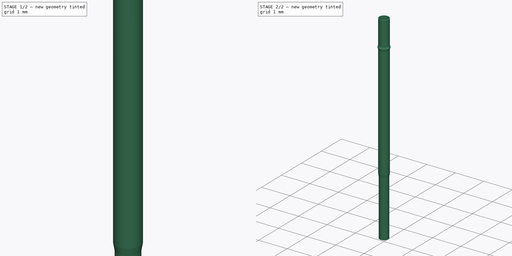
[diagram: build sequence overview — one tinted view per stage of 2, left to right]
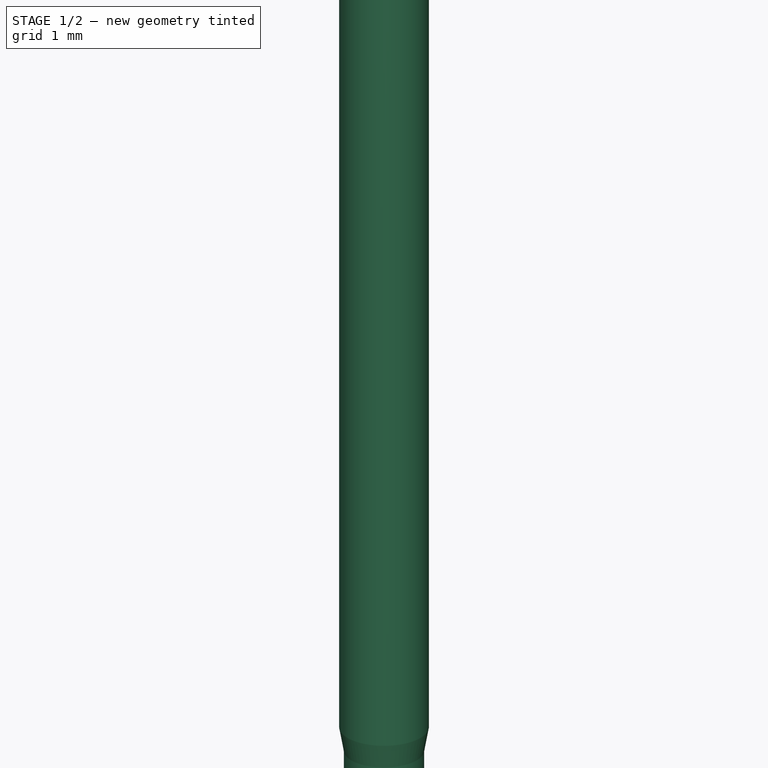
[diagram: stage 1 of 2 — iso view after this stage's code; geometry added in this stage tinted green]
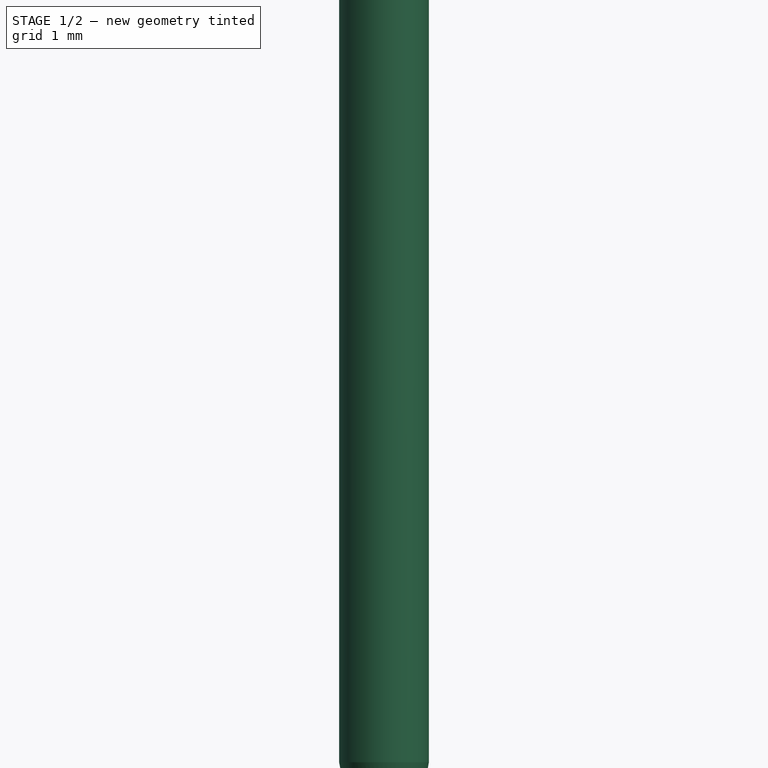
[diagram: stage 1 of 2 — front view after this stage's code; geometry added in this stage tinted green]
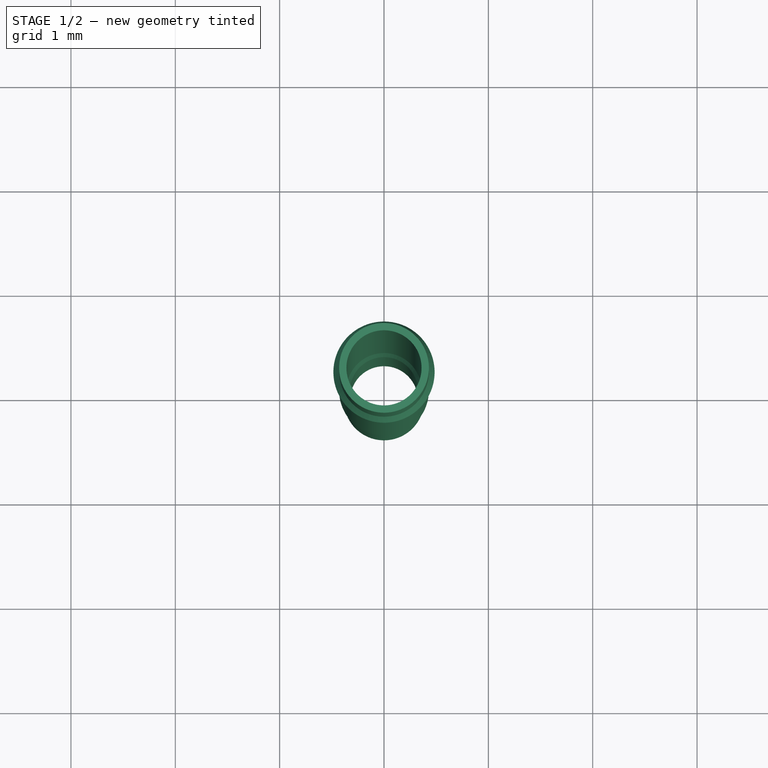
[diagram: stage 1 of 2 — top view after this stage's code; geometry added in this stage tinted green]
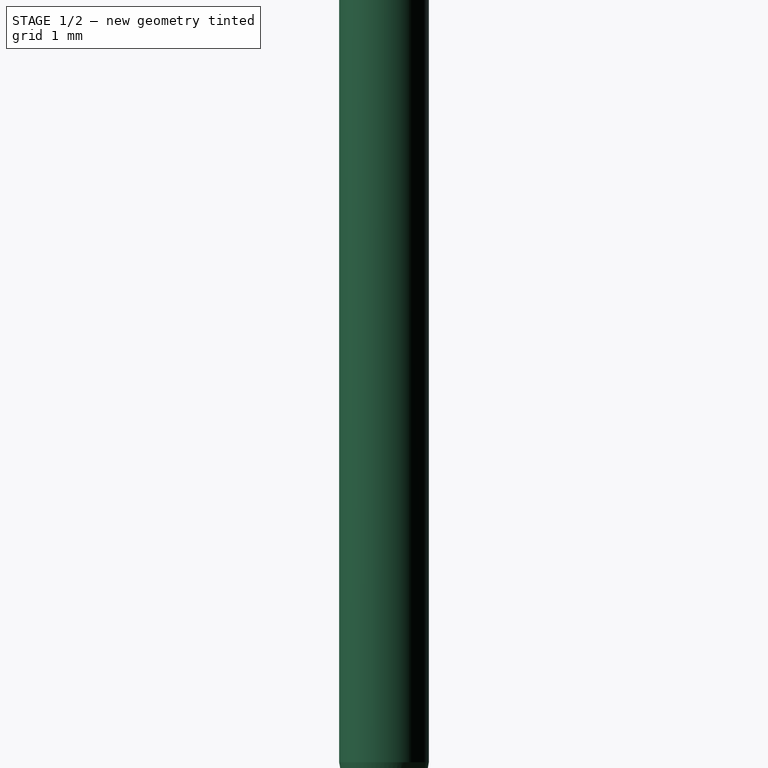
[diagram: stage 1 of 2 — right view after this stage's code; geometry added in this stage tinted green]
FCSTD DOCUMENT  (FreeCAD 0.17R13541 (Git))
Label: s13-503
License: All rights reserved
LicenseURL: http://en.wikipedia.org/wiki/All_rights_reserved
objects: Sketcher::SketchObject×7, PartDesign::AdditiveLoft×1, PartDesign::Body×1, Part::FeaturePython×1
note: 11 computed .brp shape members not serialized (recipe doc carries the construction recipe); baked Part::Feature solids carry a one-line shape summary decoded from their .brp

FEATURE [Sketcher::SketchObject] Sketch  label="Bottom"
  AttachmentOffset = pos=(0,0,-15.25) rot=(0,0,1;0rad)
  MapMode = 5
  Placement = pos=(0,0,-15.25) rot=(0,0,1;0rad)
  Support = -> [XY_Plane]
  expr: Constraints[3] = 0.77000000000000002 / 2
  expr: Constraints[2] = 0.65000000000000002 / 2
  sketch-geometry (2):
    g0: Circle CenterX=0 CenterY=0 CenterZ=0 NormalX=0 NormalY=0 NormalZ=1 AngleXU=0 Radius=0.325
    g1: Circle CenterX=0 CenterY=0 CenterZ=0 NormalX=0 NormalY=0 NormalZ=1 AngleXU=0 Radius=0.385
  constraints (4):
    c: Coincident(g0,g-1)
    c: Coincident(g1,g-1)
    c: Radius(g0) = 0.325
    c: Radius(g1) = 0.385
FEATURE [Sketcher::SketchObject] Sketch001  label="Middle"
  AttachmentOffset = pos=(0,0,-10) rot=(0,0,1;0rad)
  MapMode = 5
  Placement = pos=(0,0,-10) rot=(0,0,1;0rad)
  Support = -> [XY_Plane]
  expr: Constraints[3] = 0.85999999999999999 / 2
  expr: Constraints[2] = 0.71999999999999997 / 2
  sketch-geometry (2):
    g0: Circle CenterX=0 CenterY=0 CenterZ=0 NormalX=0 NormalY=0 NormalZ=1 AngleXU=0 Radius=0.36
    g1: Circle CenterX=0 CenterY=0 CenterZ=0 NormalX=0 NormalY=0 NormalZ=1 AngleXU=0 Radius=0.43
  constraints (4):
    c: Coincident(g0,g-1)
    c: Coincident(g1,g-1)
    c: Radius(g0) = 0.36
    c: Radius(g1) = 0.43
FEATURE [Sketcher::SketchObject] Sketch002  label="Top"
  AttachmentOffset = pos=(0,0,2.5) rot=(0,0,1;0rad)
  MapMode = 5
  Placement = pos=(0,0,2.5) rot=(0,0,1;0rad)
  Support = -> [XY_Plane]
  expr: Constraints[3] = 0.85999999999999999 / 2
  expr: Constraints[2] = 0.71999999999999997 / 2
  sketch-geometry (2):
    g0: Circle CenterX=0 CenterY=0 CenterZ=0 NormalX=0 NormalY=0 NormalZ=1 AngleXU=0 Radius=0.36
    g1: Circle CenterX=0 CenterY=0 CenterZ=0 NormalX=0 NormalY=0 NormalZ=1 AngleXU=0 Radius=0.43
  constraints (4):
    c: Coincident(g0,g-1)
    c: Coincident(g1,g-1)
    c: Radius(g0) = 0.36
    c: Radius(g1) = 0.43
FEATURE [Sketcher::SketchObject] Sketch003  label="Shelf"
  AttachmentOffset = pos=(0,0,0.15) rot=(0,0,1;0rad)
  MapMode = 5
  Placement = pos=(0,0,0.15) rot=(0,0,1;0rad)
  Support = -> [XY_Plane]
  expr: Constraints[3] = 0.96999999999999997 / 2
  expr: Constraints[2] = 0.71999999999999997 / 2
  sketch-geometry (2):
    g0: Circle CenterX=0 CenterY=0 CenterZ=0 NormalX=0 NormalY=0 NormalZ=1 AngleXU=0 Radius=0.36
    g1: Circle CenterX=0 CenterY=0 CenterZ=0 NormalX=0 NormalY=0 NormalZ=1 AngleXU=0 Radius=0.485
  constraints (4):
    c: Coincident(g0,g-1)
    c: Coincident(g1,g-1)
    c: Radius(g0) = 0.36
    c: Radius(g1) = 0.485
FEATURE [Sketcher::SketchObject] Sketch004  label="ShelfTop"
  AttachmentOffset = pos=(0,0,0.3) rot=(0,0,1;0rad)
  MapMode = 5
  Placement = pos=(0,0,0.3) rot=(0,0,1;0rad)
  Support = -> [XY_Plane]
  expr: Constraints[3] = 0.85999999999999999 / 2
  expr: Constraints[2] = 0.71999999999999997 / 2
  sketch-geometry (2):
    g0: Circle CenterX=0 CenterY=0 CenterZ=0 NormalX=0 NormalY=0 NormalZ=1 AngleXU=0 Radius=0.36
    g1: Circle CenterX=0 CenterY=0 CenterZ=0 NormalX=0 NormalY=0 NormalZ=1 AngleXU=0 Radius=0.43
  constraints (4):
    c: Coincident(g0,g-1)
    c: Coincident(g1,g-1)
    c: Radius(g0) = 0.36
    c: Radius(g1) = 0.43
FEATURE [Sketcher::SketchObject] Sketch005  label="ShelfBottom"
  MapMode = 5
  Support = -> [XY_Plane]
  expr: Constraints[3] = 0.85999999999999999 / 2
  expr: Constraints[2] = 0.71999999999999997 / 2
  sketch-geometry (2):
    g0: Circle CenterX=0 CenterY=0 CenterZ=0 NormalX=0 NormalY=0 NormalZ=1 AngleXU=0 Radius=0.36
    g1: Circle CenterX=0 CenterY=0 CenterZ=0 NormalX=0 NormalY=0 NormalZ=1 AngleXU=0 Radius=0.43
  constraints (4):
    c: Coincident(g0,g-1)
    c: Coincident(g1,g-1)
    c: Radius(g0) = 0.36
    c: Radius(g1) = 0.43
FEATURE [Sketcher::SketchObject] Sketch006  label="BottomTop"
  AttachmentOffset = pos=(0,0,-10.25) rot=(0,0,1;0rad)
  MapMode = 5
  Placement = pos=(0,0,-10.25) rot=(0,0,1;0rad)
  Support = -> [XY_Plane]
  expr: Constraints[3] = 0.77000000000000002 / 2
  expr: Constraints[2] = 0.65000000000000002 / 2
  sketch-geometry (2):
    g0: Circle CenterX=0 CenterY=0 CenterZ=0 NormalX=0 NormalY=0 NormalZ=1 AngleXU=0 Radius=0.325
    g1: Circle CenterX=0 CenterY=0 CenterZ=0 NormalX=0 NormalY=0 NormalZ=1 AngleXU=0 Radius=0.385
  constraints (4):
    c: Coincident(g0,g-1)
    c: Coincident(g1,g-1)
    c: Radius(g0) = 0.325
    c: Radius(g1) = 0.385
FEATURE [PartDesign::AdditiveLoft] AdditiveLoft
  Closed = false
  Profile = -> Sketch
  Ruled = true
  Sections = -> [Sketch006,Sketch001,Sketch005,Sketch003,Sketch004,Sketch002]
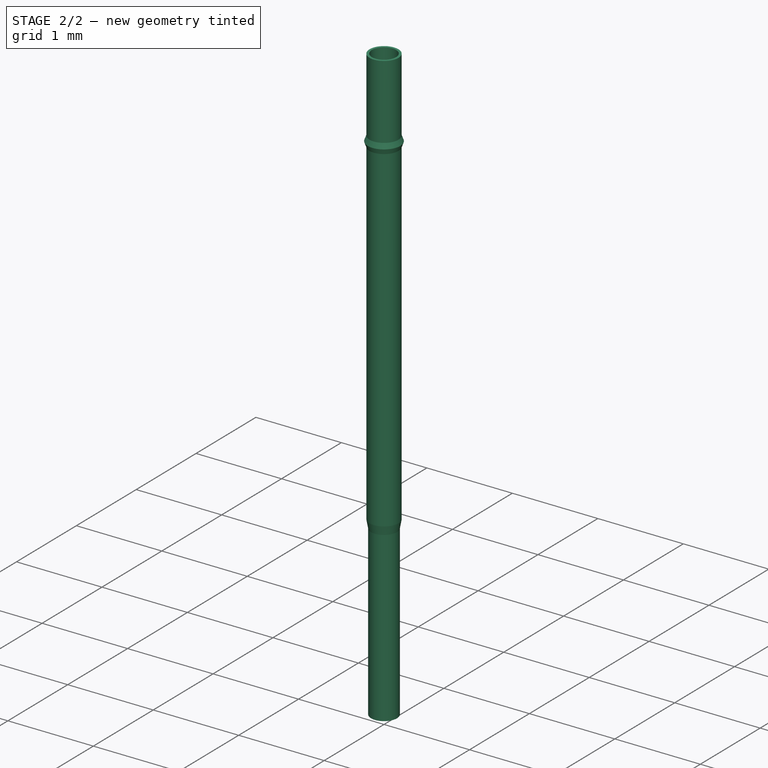
[diagram: stage 2 of 2 — iso view after this stage's code; geometry added in this stage tinted green]
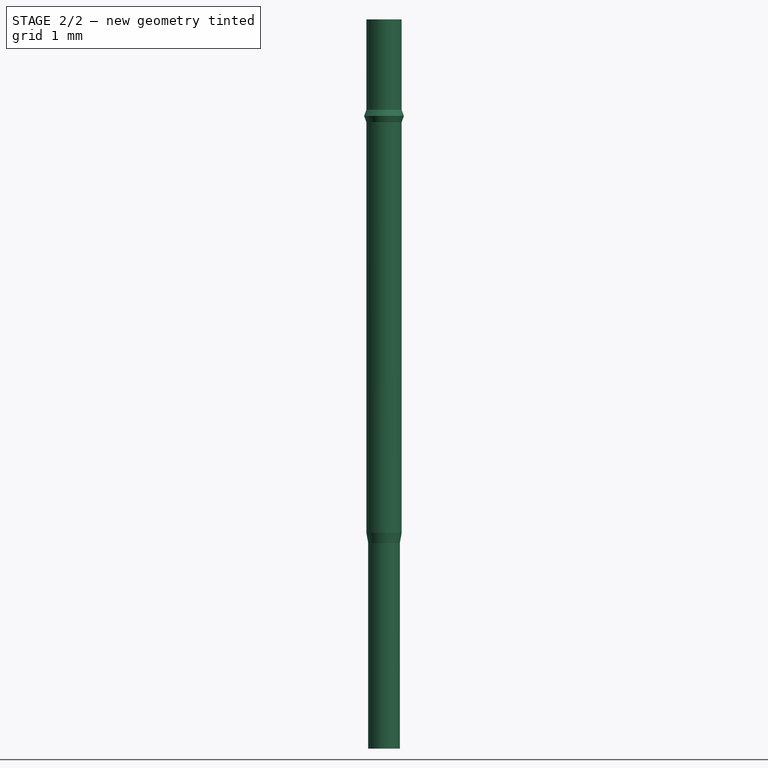
[diagram: stage 2 of 2 — front view after this stage's code; geometry added in this stage tinted green]
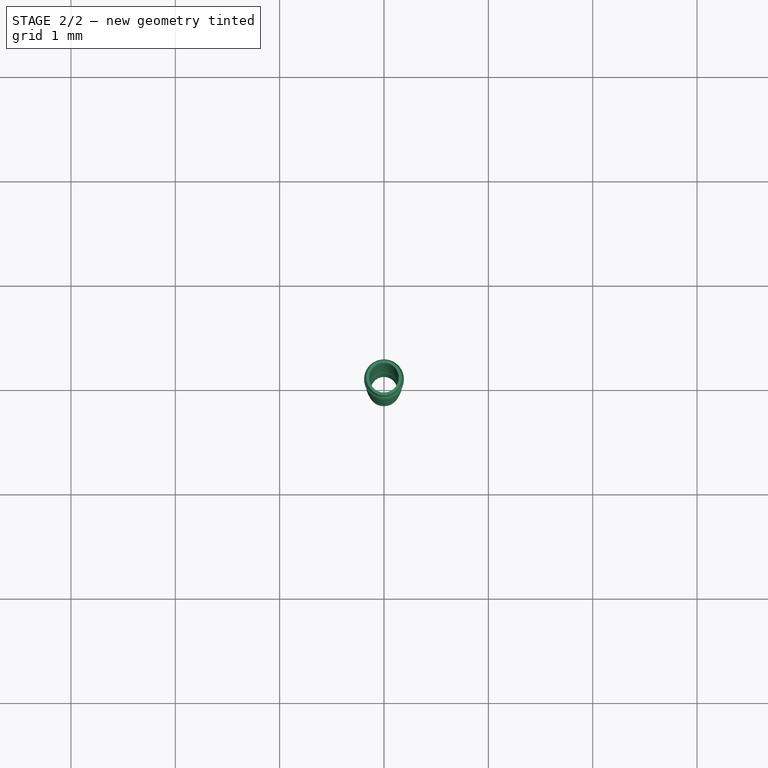
[diagram: stage 2 of 2 — top view after this stage's code; geometry added in this stage tinted green]
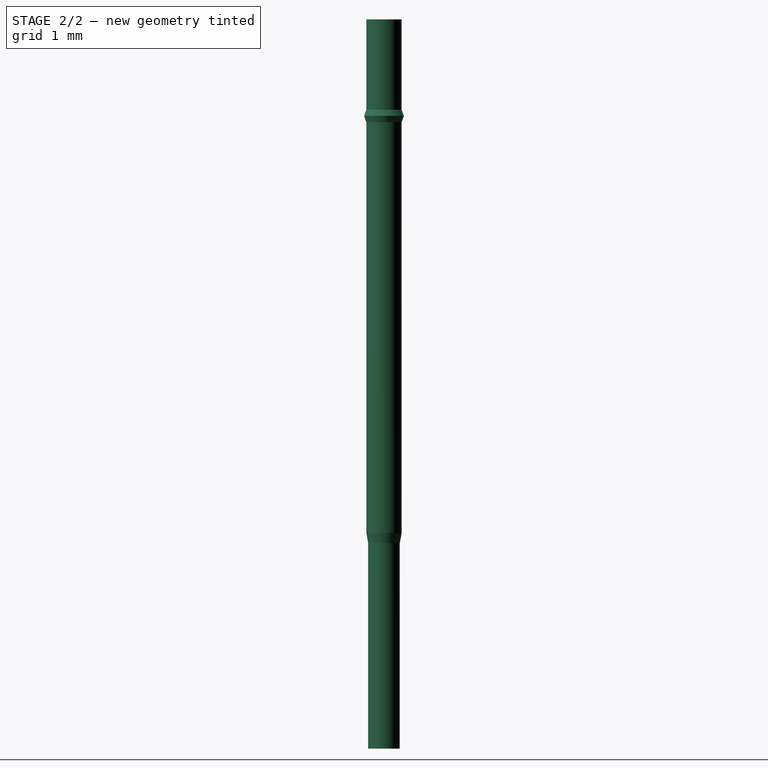
[diagram: stage 2 of 2 — right view after this stage's code; geometry added in this stage tinted green]
FEATURE [PartDesign::Body] Body
  Group = -> [Sketch,Sketch001,Sketch002,Sketch003,Sketch004,Sketch005,Sketch006,AdditiveLoft]
  Origin = -> Origin
  Tip = -> AdditiveLoft
FEATURE [Part::FeaturePython] Clone  label="ScaledBody"  # Draft clone (typed FeaturePython)
  AttacherType = Attacher::AttachEngine3D
  Fuse = false
  Objects = -> [Body]
  Scale = (0.393701,0.393701,0.393701)
  expr: Scale.z = 1 / 2.54
  expr: Scale.y = 1 / 2.54
  expr: Scale.x = 1 / 2.54
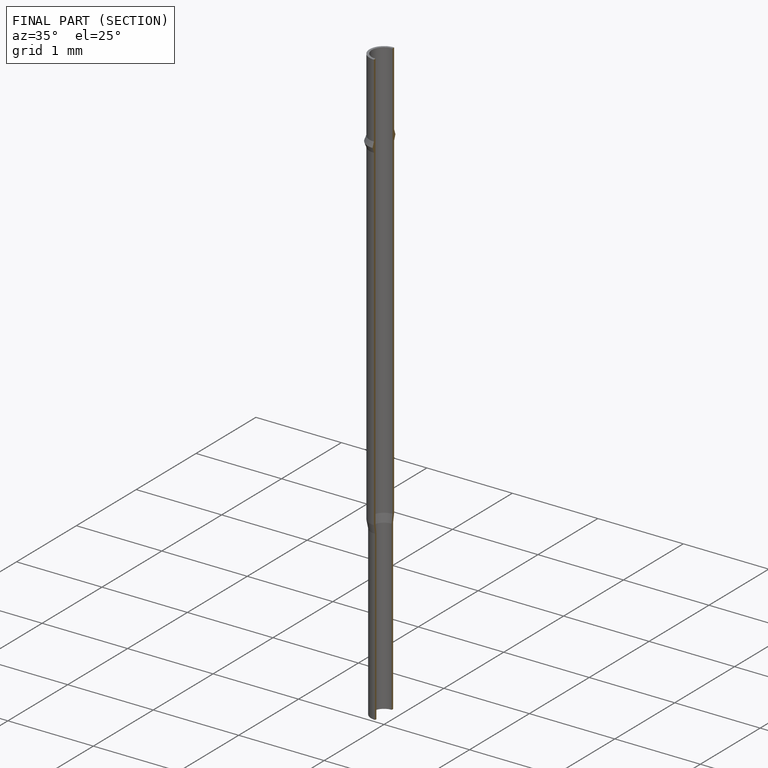
[diagram: finished part — half-section view (interior)]
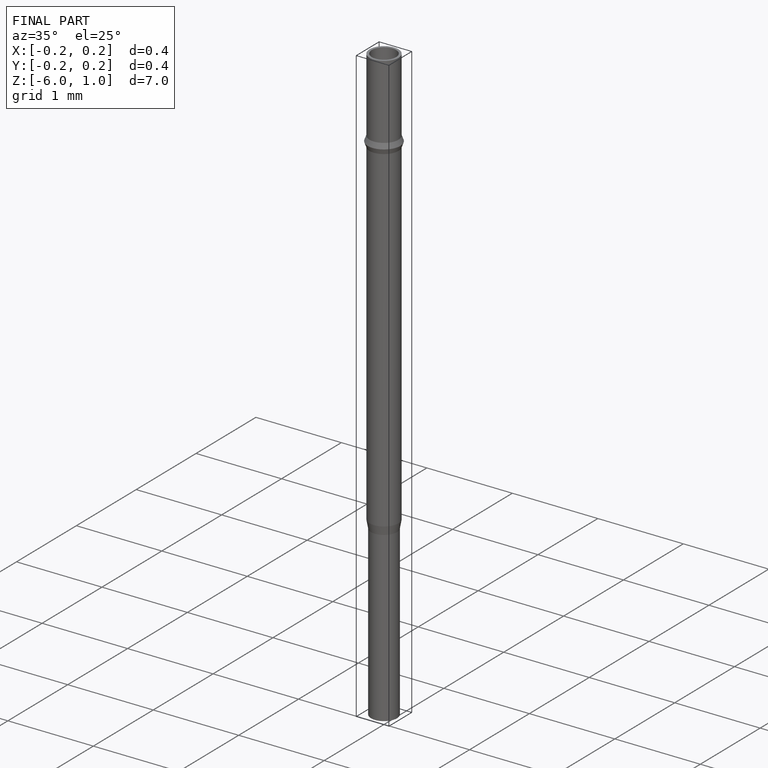
[diagram: finished part — iso view with bounding-box wireframe]
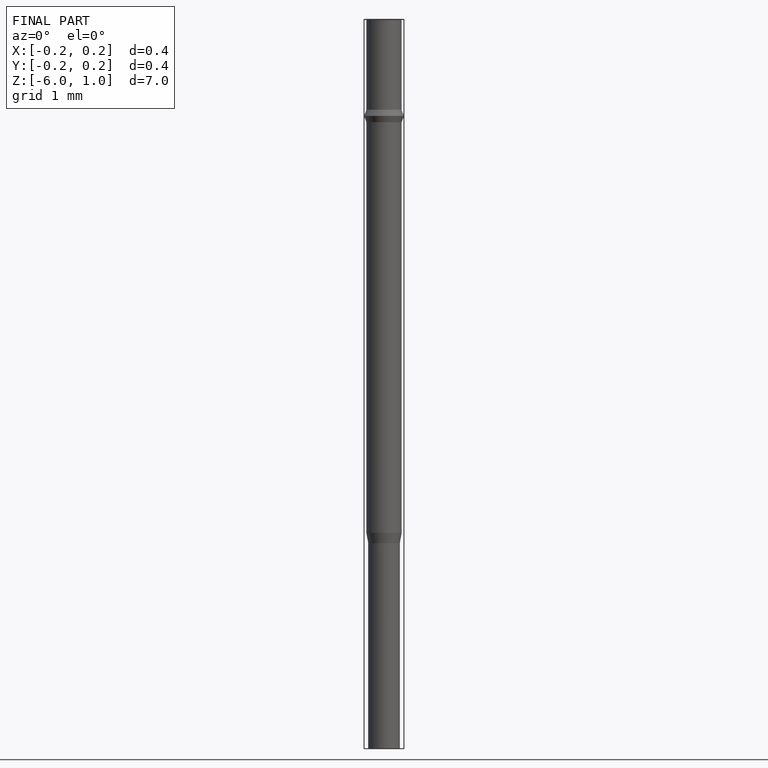
[diagram: finished part — front view with bounding-box wireframe]
